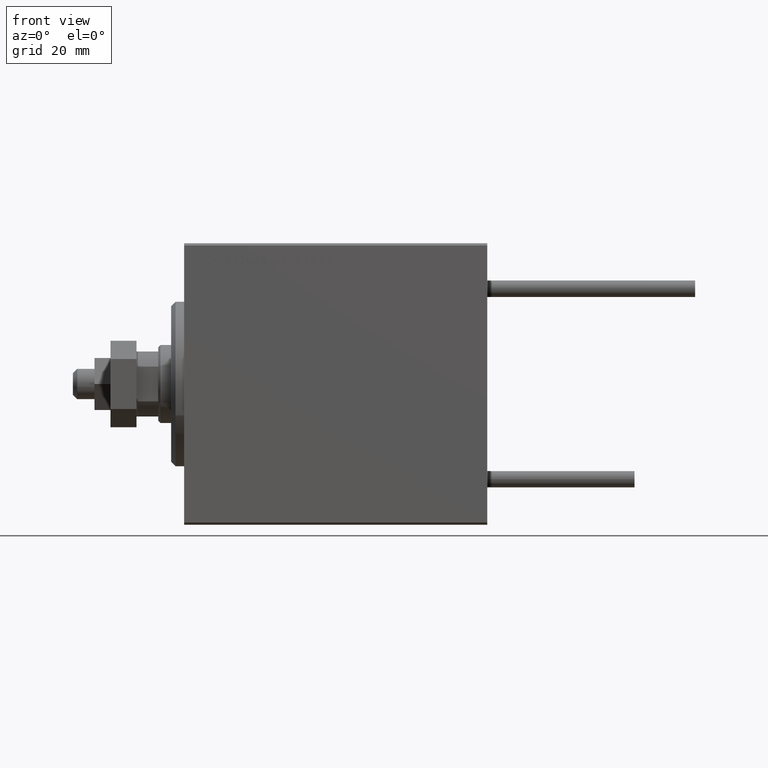
[diagram: clean part render]
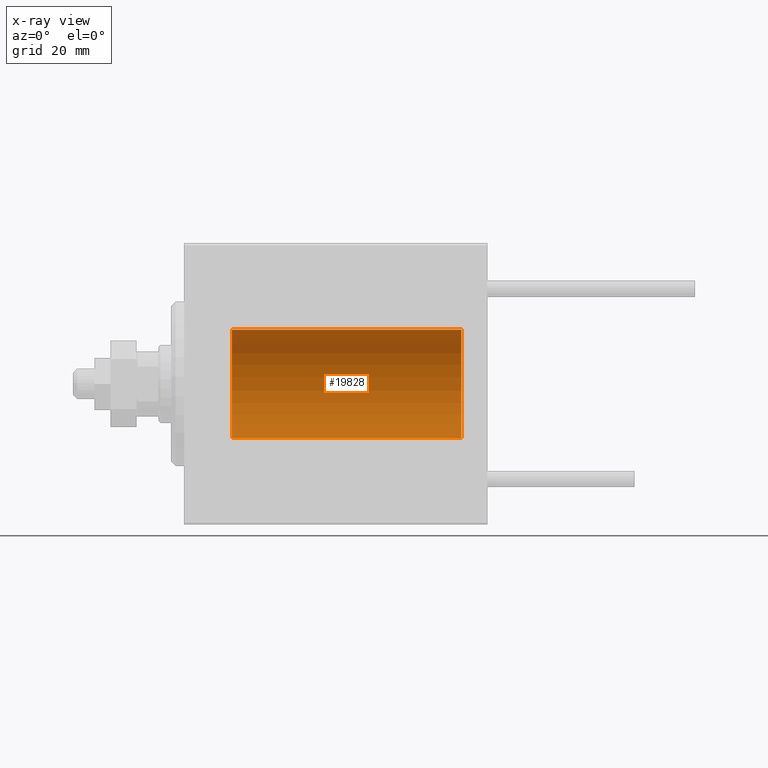
[diagram: x-ray — body ghosted, one internal face saturated and labeled with its STEP entity id]
A machine part, front view, then the same camera in x-ray: the body is ghosted and one INTERNAL B-rep face — a face not visible from any outside direction — is saturated and labeled: STEP entity #19828.
In plain terms, the highlighted cylindrical surface (partial cylindrical patch) has radius 12.5 mm, axis along (-1, -0, -0).
Its self-contained STEP definition (entity closure, byte-faithful):
#165 = FACE_OUTER_BOUND ( 'NONE', #14528, .T. ) ;
#2331 = CARTESIAN_POINT ( 'NONE',  ( 64.00000000000000000, 1.530808498934191521E-15, -12.50000000000000000 ) ) ;
#4066 = VERTEX_POINT ( 'NONE', #26313 ) ;
#4892 = VERTEX_POINT ( 'NONE', #32788 ) ;
#4960 = ORIENTED_EDGE ( 'NONE', *, *, #7414, .F. ) ;
#7414 = EDGE_CURVE ( 'NONE', #4892, #31838, #13768, .T. ) ;
#10655 = EDGE_CURVE ( 'NONE', #46888, #31838, #49317, .T. ) ;
#13768 = LINE ( 'NONE', #2331, #34586 ) ;
#14528 = EDGE_LOOP ( 'NONE', ( #4960, #49843, #17006, #19678 ) ) ;
#14765 = DIRECTION ( 'NONE',  ( -1.000000000000000000, -0.000000000000000000, -0.000000000000000000 ) ) ;
#15412 = LINE ( 'NONE', #46587, #29902 ) ;
#15658 = DIRECTION ( 'NONE',  ( -1.000000000000000000, 0.000000000000000000, 0.000000000000000000 ) ) ;
#17006 = ORIENTED_EDGE ( 'NONE', *, *, #36805, .T. ) ;
#18727 = AXIS2_PLACEMENT_3D ( 'NONE', #21474, #36690, #32879 ) ;
#18972 = EDGE_CURVE ( 'NONE', #4066, #4892, #41382, .T. ) ;
#19294 = CARTESIAN_POINT ( 'NONE',  ( 10.99999999999999645, 1.530808498934191521E-15, -12.50000000000000000 ) ) ;
#19678 = ORIENTED_EDGE ( 'NONE', *, *, #10655, .T. ) ;
#19679 = CARTESIAN_POINT ( 'NONE',  ( 64.00000000000000000, 0.000000000000000000, 0.000000000000000000 ) ) ;
#19828 = ADVANCED_FACE ( 'NONE', ( #165 ), #31078, .F. ) ;
#21474 = CARTESIAN_POINT ( 'NONE',  ( 64.00000000000000000, 0.000000000000000000, 0.000000000000000000 ) ) ;
#22522 = DIRECTION ( 'NONE',  ( -1.000000000000000000, -0.000000000000000000, -0.000000000000000000 ) ) ;
#23800 = CARTESIAN_POINT ( 'NONE',  ( 10.99999999999999645, 0.000000000000000000, 12.50000000000000000 ) ) ;
#26313 = CARTESIAN_POINT ( 'NONE',  ( 64.00000000000000000, 0.000000000000000000, 12.50000000000000000 ) ) ;
#28287 = AXIS2_PLACEMENT_3D ( 'NONE', #34659, #15658, #38977 ) ;
#29902 = VECTOR ( 'NONE', #22522, 1000.000000000000000 ) ;
#31078 = CYLINDRICAL_SURFACE ( 'NONE', #47273, 12.50000000000000000 ) ;
#31838 = VERTEX_POINT ( 'NONE', #19294 ) ;
#32788 = CARTESIAN_POINT ( 'NONE',  ( 64.00000000000000000, 1.530808498934191521E-15, -12.50000000000000000 ) ) ;
#32879 = DIRECTION ( 'NONE',  ( 0.000000000000000000, 0.000000000000000000, 1.000000000000000000 ) ) ;
#34586 = VECTOR ( 'NONE', #14765, 1000.000000000000000 ) ;
#34659 = CARTESIAN_POINT ( 'NONE',  ( 10.99999999999999645, 0.000000000000000000, 0.000000000000000000 ) ) ;
#36690 = DIRECTION ( 'NONE',  ( -1.000000000000000000, 0.000000000000000000, 0.000000000000000000 ) ) ;
#36805 = EDGE_CURVE ( 'NONE', #4066, #46888, #15412, .T. ) ;
#38977 = DIRECTION ( 'NONE',  ( 0.000000000000000000, 0.000000000000000000, 1.000000000000000000 ) ) ;
#41382 = CIRCLE ( 'NONE', #18727, 12.50000000000000000 ) ;
#42491 = DIRECTION ( 'NONE',  ( -1.000000000000000000, -0.000000000000000000, -0.000000000000000000 ) ) ;
#45803 = DIRECTION ( 'NONE',  ( 0.000000000000000000, 0.000000000000000000, 1.000000000000000000 ) ) ;
#46587 = CARTESIAN_POINT ( 'NONE',  ( 64.00000000000000000, 0.000000000000000000, 12.50000000000000000 ) ) ;
#46888 = VERTEX_POINT ( 'NONE', #23800 ) ;
#47273 = AXIS2_PLACEMENT_3D ( 'NONE', #19679, #42491, #45803 ) ;
#49317 = CIRCLE ( 'NONE', #28287, 12.50000000000000000 ) ;
#49843 = ORIENTED_EDGE ( 'NONE', *, *, #18972, .F. ) ;